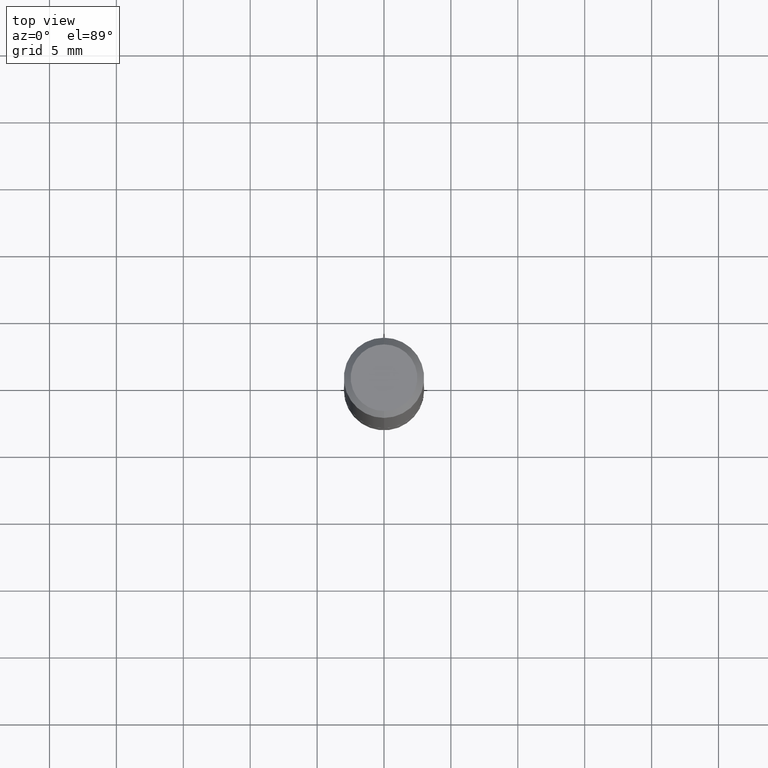
[diagram: clean part render]
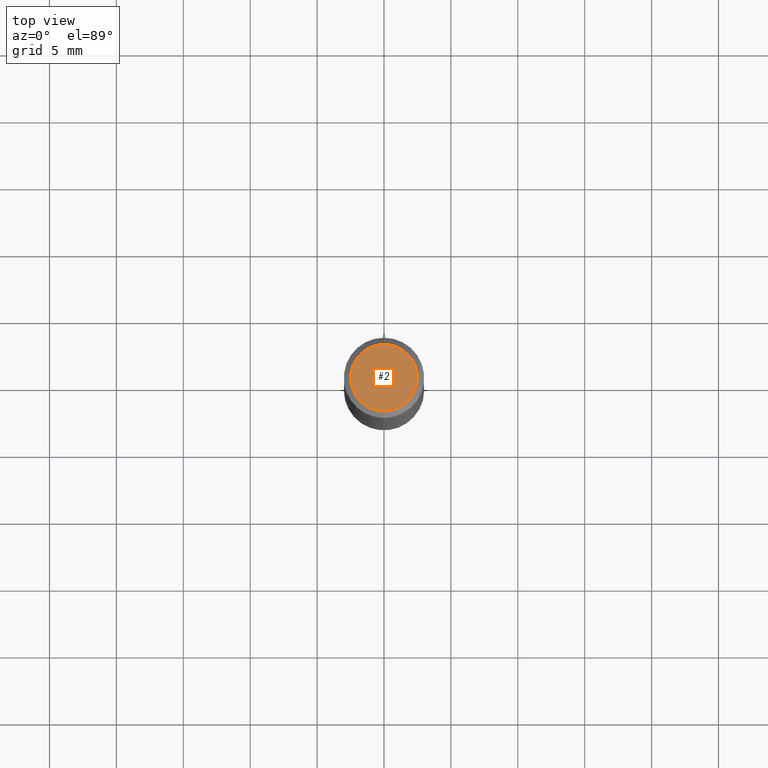
[diagram: same view with one face highlighted and labeled with its STEP entity id]
A machine part, top view. The second image highlights one B-rep face of the part: STEP entity #2.
In plain terms, the highlighted planar face has unit normal (0, -0, -1).
Its self-contained STEP definition (entity closure, byte-faithful):
#2 = ADVANCED_FACE ( 'NONE', ( #59 ), #264, .F. ) ;
#24 = DIRECTION ( 'NONE',  ( -6.982962677686265922E-15, -1.000000000000000000, 3.499884486005479316E-15 ) ) ;
#59 = FACE_OUTER_BOUND ( 'NONE', #88, .T. ) ;
#66 = CARTESIAN_POINT ( 'NONE',  ( -7.416198335591013204E-16, -0.09809999999999970133, 6.984495534920956543E-16 ) ) ;
#88 = EDGE_LOOP ( 'NONE', ( #216, #91 ) ) ;
#91 = ORIENTED_EDGE ( 'NONE', *, *, #292, .T. ) ;
#115 = DIRECTION ( 'NONE',  ( -2.439600919884167677E-29, 3.499884486005480105E-15, 1.000000000000000000 ) ) ;
#131 = DIRECTION ( 'NONE',  ( -6.982962677686265922E-15, -1.000000000000000000, 3.499884486005479316E-15 ) ) ;
#140 = CARTESIAN_POINT ( 'NONE',  ( 7.548582654578846686E-16, 0.09809999999999970133, 1.177221733782262973E-17 ) ) ;
#151 = CIRCLE ( 'NONE', #357, 0.09809999999999970133 ) ;
#154 = EDGE_CURVE ( 'NONE', #178, #159, #166, .T. ) ;
#158 = DIRECTION ( 'NONE',  ( 2.439600919884167958E-29, -3.499884486005479711E-15, -1.000000000000000000 ) ) ;
#159 = VERTEX_POINT ( 'NONE', #66 ) ;
#166 = CIRCLE ( 'NONE', #220, 0.09809999999999970133 ) ;
#178 = VERTEX_POINT ( 'NONE', #140 ) ;
#203 = DIRECTION ( 'NONE',  ( -2.439600919884167677E-29, 3.499884486005480105E-15, 1.000000000000000000 ) ) ;
#216 = ORIENTED_EDGE ( 'NONE', *, *, #154, .T. ) ;
#220 = AXIS2_PLACEMENT_3D ( 'NONE', #306, #203, #131 ) ;
#245 = CARTESIAN_POINT ( 'NONE',  ( -8.663288427192156603E-45, 1.242847078675485484E-30, 3.551108854149591813E-16 ) ) ;
#264 = PLANE ( 'NONE',  #385 ) ;
#292 = EDGE_CURVE ( 'NONE', #159, #178, #151, .T. ) ;
#306 = CARTESIAN_POINT ( 'NONE',  ( -8.663288427192156603E-45, 1.242847078675485484E-30, 3.551108854149591813E-16 ) ) ;
#322 = DIRECTION ( 'NONE',  ( 6.982962677686265922E-15, 1.000000000000000000, -3.499884486005479711E-15 ) ) ;
#355 = CARTESIAN_POINT ( 'NONE',  ( 6.850286386810205815E-16, 0.09809999999999970133, -1.657832253696569563E-16 ) ) ;
#357 = AXIS2_PLACEMENT_3D ( 'NONE', #245, #115, #24 ) ;
#385 = AXIS2_PLACEMENT_3D ( 'NONE', #355, #158, #322 ) ;